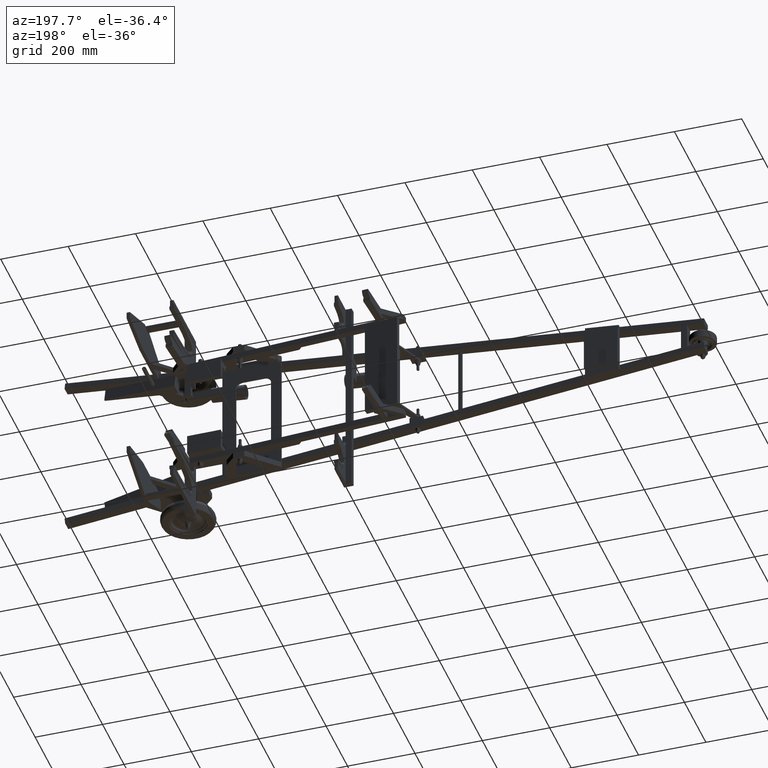
[diagram: clean part render]
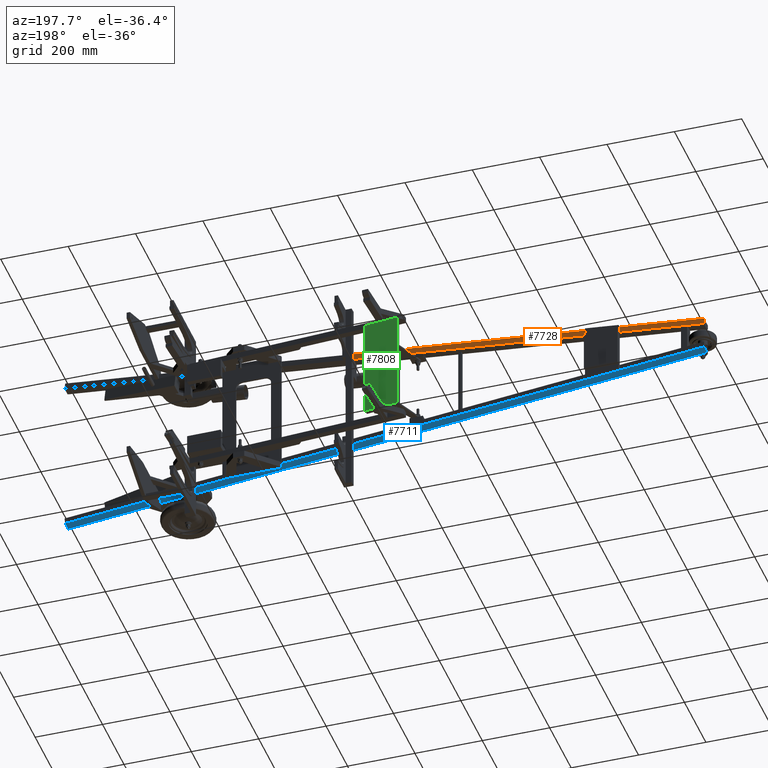
[diagram: same view with three faces highlighted in distinct colors, each labeled with its STEP entity id]
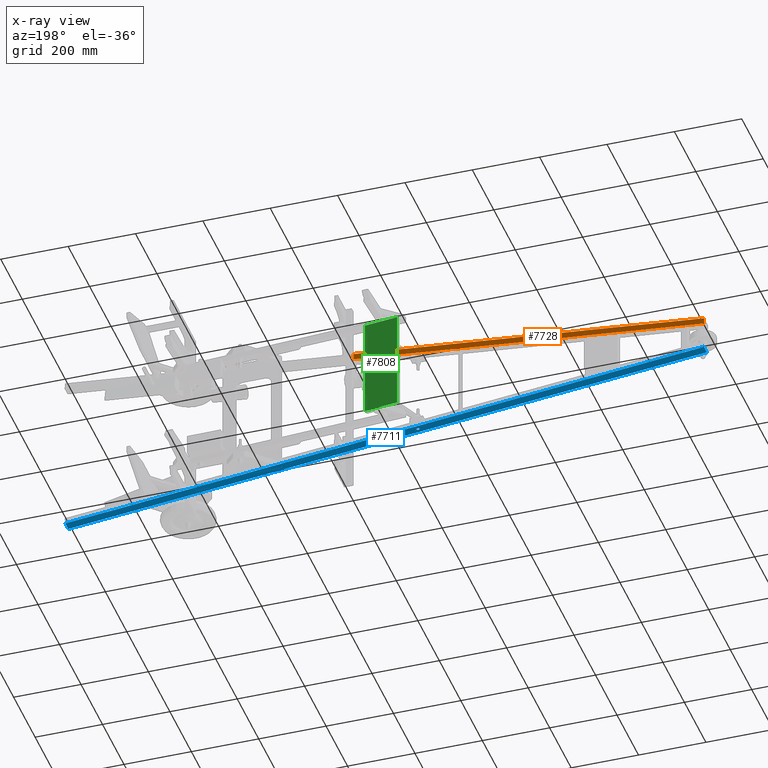
[diagram: x-ray of the same camera — body ghosted, the three highlighted faces saturated]
A machine part, auxiliary view with three faces highlighted in distinct colors.
The next image is the same camera in x-ray (body ghosted, the three faces saturated) — at least one of them is partly hidden behind the body in this view.
Their STEP definitions:

[orange] entity #7728 — the highlighted planar face has unit normal (0, 1, 0).
#979 = EDGE_CURVE ( 'NONE', #7383, #7416, #5084, .T. ) ;
#986 = EDGE_CURVE ( 'NONE', #7383, #7385, #5097, .T. ) ;
#988 = EDGE_CURVE ( 'NONE', #7417, #7385, #5101, .T. ) ;
#990 = EDGE_CURVE ( 'NONE', #7416, #7417, #5105, .T. ) ;
#4211 = CARTESIAN_POINT ( 'NONE',  ( 1550.000000000000000, 28.00000000000000000, 197.0951742379460300 ) ) ;
#4212 = DIRECTION ( 'NONE',  ( -0.9947125423363353300, 0.0000000000000000000, -0.1026983842072710400 ) ) ;
#4225 = CARTESIAN_POINT ( 'NONE',  ( 990.1697919689105400, 28.00000000000000000, -305.0000000000001100 ) ) ;
#4226 = DIRECTION ( 'NONE',  ( 0.0000000000000000000, 0.0000000000000000000, 1.000000000000000000 ) ) ;
#4229 = CARTESIAN_POINT ( 'NONE',  ( -50.00000000000004300, 28.00000000000000000, 50.00000000000000000 ) ) ;
#4230 = DIRECTION ( 'NONE',  ( 0.9947125423363353300, 0.0000000000000000000, 0.1026983842072708800 ) ) ;
#4233 = CARTESIAN_POINT ( 'NONE',  ( -50.00000000000004300, 28.00000000000000000, 31.90431985735037300 ) ) ;
#4234 = DIRECTION ( 'NONE',  ( 0.0000000000000000000, 0.0000000000000000000, 1.000000000000000000 ) ) ;
#5084 = LINE ( 'NONE', #4211, #5085 ) ;
#5085 = VECTOR ( 'NONE', #4212, 1000.000000000000100 ) ;
#5097 = LINE ( 'NONE', #4225, #5098 ) ;
#5098 = VECTOR ( 'NONE', #4226, 1000.000000000000000 ) ;
#5101 = LINE ( 'NONE', #4229, #5102 ) ;
#5102 = VECTOR ( 'NONE', #4230, 1000.000000000000000 ) ;
#5105 = LINE ( 'NONE', #4233, #5106 ) ;
#5106 = VECTOR ( 'NONE', #4234, 1000.000000000000000 ) ;
#7383 = VERTEX_POINT ( 'NONE', #24442 ) ;
#7385 = VERTEX_POINT ( 'NONE', #24444 ) ;
#7416 = VERTEX_POINT ( 'NONE', #24475 ) ;
#7417 = VERTEX_POINT ( 'NONE', #24476 ) ;
#7728 = ADVANCED_FACE ( 'NONE', ( #25381 ), #26239, .T. ) ;
#8759 = EDGE_LOOP ( 'NONE', ( #9349, #9350, #9351, #9352 ) ) ;
#9349 = ORIENTED_EDGE ( 'NONE', *, *, #986, .F. ) ;
#9350 = ORIENTED_EDGE ( 'NONE', *, *, #979, .T. ) ;
#9351 = ORIENTED_EDGE ( 'NONE', *, *, #990, .T. ) ;
#9352 = ORIENTED_EDGE ( 'NONE', *, *, #988, .T. ) ;
#24442 = CARTESIAN_POINT ( 'NONE',  ( 990.1697919689105400, 28.00000000000000000, 139.2959052549946400 ) ) ;
#24444 = CARTESIAN_POINT ( 'NONE',  ( 990.1697919689105400, 28.00000000000000000, 157.3915853976440400 ) ) ;
#24475 = CARTESIAN_POINT ( 'NONE',  ( -50.00000000000004300, 28.00000000000000000, 31.90431985735037300 ) ) ;
#24476 = CARTESIAN_POINT ( 'NONE',  ( -50.00000000000004300, 28.00000000000000000, 50.00000000000000000 ) ) ;
#25381 = FACE_OUTER_BOUND ( 'NONE', #8759, .T. ) ;
#25913 = AXIS2_PLACEMENT_3D ( 'NONE', #26234, #26244, #26245 ) ;
#26234 = CARTESIAN_POINT ( 'NONE',  ( 1550.000000000000000, 28.00000000000000000, 197.0951742379460300 ) ) ;
#26239 = PLANE ( 'NONE',  #25913 ) ;
#26244 = DIRECTION ( 'NONE',  ( 0.0000000000000000000, 1.000000000000000000, 0.0000000000000000000 ) ) ;
#26245 = DIRECTION ( 'NONE',  ( 0.0000000000000000000, -0.0000000000000000000, 1.000000000000000000 ) ) ;

[blue] entity #7711 — the highlighted planar face has unit normal (0.1027, 0, 0.9947).
#915 = EDGE_CURVE ( 'NONE', #7366, #7367, #1766, .T. ) ;
#941 = EDGE_CURVE ( 'NONE', #7390, #7388, #5012, .T. ) ;
#942 = EDGE_CURVE ( 'NONE', #7392, #7399, #5014, .T. ) ;
#943 = EDGE_CURVE ( 'NONE', #7391, #7392, #5007, .T. ) ;
#946 = EDGE_CURVE ( 'NONE', #7395, #7390, #5022, .T. ) ;
#949 = EDGE_CURVE ( 'NONE', #7397, #7395, #5011, .T. ) ;
#951 = EDGE_CURVE ( 'NONE', #7391, #7388, #5017, .T. ) ;
#952 = EDGE_CURVE ( 'NONE', #7367, #7366, #1762, .T. ) ;
#953 = EDGE_CURVE ( 'NONE', #7398, #7399, #5029, .T. ) ;
#954 = EDGE_CURVE ( 'NONE', #7398, #7397, #5036, .T. ) ;
#1762 =( BOUNDED_CURVE ( )  B_SPLINE_CURVE ( 3, ( #4151, #4153, #4154, #4155 ),
 .UNSPECIFIED., .F., .F. ) 
 B_SPLINE_CURVE_WITH_KNOTS ( ( 4, 4 ),
 ( 3.141592653589793100, 6.283185307179586200 ),
 .UNSPECIFIED. ) 
 CURVE ( )  GEOMETRIC_REPRESENTATION_ITEM ( )  RATIONAL_B_SPLINE_CURVE ( ( 1.000000000000000000, 0.3333333333333333700, 0.3333333333333333700, 1.000000000000000000 ) ) 
 REPRESENTATION_ITEM ( '' )  );
#1766 =( BOUNDED_CURVE ( )  B_SPLINE_CURVE ( 3, ( #4069, #4073, #4074, #4075 ),
 .UNSPECIFIED., .F., .F. ) 
 B_SPLINE_CURVE_WITH_KNOTS ( ( 4, 4 ),
 ( 0.0000000000000000000, 3.141592653589793100 ),
 .UNSPECIFIED. ) 
 CURVE ( )  GEOMETRIC_REPRESENTATION_ITEM ( )  RATIONAL_B_SPLINE_CURVE ( ( 1.000000000000000000, 0.3333333333333333700, 0.3333333333333333700, 1.000000000000000000 ) ) 
 REPRESENTATION_ITEM ( '' )  );
#4069 = CARTESIAN_POINT ( 'NONE',  ( 799.4539503963831100, 14.00000000000000000, -137.7012648893440600 ) ) ;
#4073 = CARTESIAN_POINT ( 'NONE',  ( 799.4539503963831100, 6.000000000000017800, -137.7012648893440600 ) ) ;
#4074 = CARTESIAN_POINT ( 'NONE',  ( 807.4539503963832200, 6.000000000000017800, -138.5272191612470200 ) ) ;
#4075 = CARTESIAN_POINT ( 'NONE',  ( 807.4539503963831100, 14.00000000000000000, -138.5272191612470200 ) ) ;
#4129 = CARTESIAN_POINT ( 'NONE',  ( -50.00000000000004300, 28.00000000000000000, -50.00000000000000000 ) ) ;
#4131 = CARTESIAN_POINT ( 'NONE',  ( -50.00000000000004300, 28.00000000000000000, -50.00000000000000000 ) ) ;
#4132 = DIRECTION ( 'NONE',  ( -0.9947125423363353300, -0.0000000000000000000, 0.1026983842072708800 ) ) ;
#4133 = CARTESIAN_POINT ( 'NONE',  ( -50.00000000000004300, 28.00000000000000000, -50.00000000000000000 ) ) ;
#4134 = DIRECTION ( 'NONE',  ( -0.0000000000000000000, -1.000000000000000000, -0.0000000000000000000 ) ) ;
#4136 = DIRECTION ( 'NONE',  ( -0.9947125423363353300, -0.0000000000000000000, 0.1026983842072708800 ) ) ;
#4141 = CARTESIAN_POINT ( 'NONE',  ( -50.00000000000004300, 28.00000000000000000, -50.00000000000000000 ) ) ;
#4142 = DIRECTION ( 'NONE',  ( -0.9947125423363353300, -0.0000000000000000000, 0.1026983842072708800 ) ) ;
#4143 = CARTESIAN_POINT ( 'NONE',  ( -50.00000000000004300, 28.00000000000000000, -50.00000000000000000 ) ) ;
#4147 = CARTESIAN_POINT ( 'NONE',  ( -50.00000000000004300, 28.00000000000000000, -50.00000000000000000 ) ) ;
#4148 = DIRECTION ( 'NONE',  ( -0.9947125423363353300, -0.0000000000000000000, 0.1026983842072708800 ) ) ;
#4151 = CARTESIAN_POINT ( 'NONE',  ( 807.4539503963831100, 14.00000000000000000, -138.5272191612470200 ) ) ;
#4152 = DIRECTION ( 'NONE',  ( 0.9947125423363353300, 0.0000000000000000000, -0.1026983842072708800 ) ) ;
#4153 = CARTESIAN_POINT ( 'NONE',  ( 807.4539503963832200, 21.99999999999998600, -138.5272191612470200 ) ) ;
#4154 = CARTESIAN_POINT ( 'NONE',  ( 799.4539503963831100, 21.99999999999998600, -137.7012648893440600 ) ) ;
#4155 = CARTESIAN_POINT ( 'NONE',  ( 799.4539503963831100, 14.00000000000000000, -137.7012648893440600 ) ) ;
#4157 = CARTESIAN_POINT ( 'NONE',  ( -50.00000000000004300, 0.0000000000000000000, -50.00000000000000000 ) ) ;
#4158 = DIRECTION ( 'NONE',  ( -0.9947125423363353300, -0.0000000000000000000, 0.1026983842072708800 ) ) ;
#4159 = CARTESIAN_POINT ( 'NONE',  ( 1846.565191785169400, -304.1883561386446800, -245.8095152621833100 ) ) ;
#4160 = DIRECTION ( 'NONE',  ( 0.0000000000000000000, 1.000000000000000000, 0.0000000000000000000 ) ) ;
#5007 = LINE ( 'NONE', #4129, #5016 ) ;
#5011 = LINE ( 'NONE', #4143, #5028 ) ;
#5012 = LINE ( 'NONE', #4131, #5013 ) ;
#5013 = VECTOR ( 'NONE', #4132, 1000.000000000000000 ) ;
#5014 = LINE ( 'NONE', #4133, #5015 ) ;
#5015 = VECTOR ( 'NONE', #4134, 1000.000000000000000 ) ;
#5016 = VECTOR ( 'NONE', #4136, 1000.000000000000000 ) ;
#5017 = LINE ( 'NONE', #4147, #5032 ) ;
#5022 = LINE ( 'NONE', #4141, #5023 ) ;
#5023 = VECTOR ( 'NONE', #4142, 1000.000000000000000 ) ;
#5028 = VECTOR ( 'NONE', #4148, 1000.000000000000000 ) ;
#5029 = LINE ( 'NONE', #4157, #5035 ) ;
#5032 = VECTOR ( 'NONE', #4152, 1000.000000000000000 ) ;
#5035 = VECTOR ( 'NONE', #4158, 1000.000000000000000 ) ;
#5036 = LINE ( 'NONE', #4159, #5037 ) ;
#5037 = VECTOR ( 'NONE', #4160, 1000.000000000000000 ) ;
#7366 = VERTEX_POINT ( 'NONE', #24425 ) ;
#7367 = VERTEX_POINT ( 'NONE', #24426 ) ;
#7388 = VERTEX_POINT ( 'NONE', #24447 ) ;
#7390 = VERTEX_POINT ( 'NONE', #24449 ) ;
#7391 = VERTEX_POINT ( 'NONE', #24450 ) ;
#7392 = VERTEX_POINT ( 'NONE', #24451 ) ;
#7395 = VERTEX_POINT ( 'NONE', #24454 ) ;
#7397 = VERTEX_POINT ( 'NONE', #24456 ) ;
#7398 = VERTEX_POINT ( 'NONE', #24457 ) ;
#7399 = VERTEX_POINT ( 'NONE', #24458 ) ;
#7711 = ADVANCED_FACE ( 'NONE', ( #25362, #25366 ), #26170, .F. ) ;
#8740 = EDGE_LOOP ( 'NONE', ( #9256, #9257 ) ) ;
#8744 = EDGE_LOOP ( 'NONE', ( #9258, #9259, #9260, #9261, #9262, #9263, #9264, #9265 ) ) ;
#9256 = ORIENTED_EDGE ( 'NONE', *, *, #952, .T. ) ;
#9257 = ORIENTED_EDGE ( 'NONE', *, *, #915, .T. ) ;
#9258 = ORIENTED_EDGE ( 'NONE', *, *, #953, .T. ) ;
#9259 = ORIENTED_EDGE ( 'NONE', *, *, #942, .F. ) ;
#9260 = ORIENTED_EDGE ( 'NONE', *, *, #943, .F. ) ;
#9261 = ORIENTED_EDGE ( 'NONE', *, *, #951, .T. ) ;
#9262 = ORIENTED_EDGE ( 'NONE', *, *, #941, .F. ) ;
#9263 = ORIENTED_EDGE ( 'NONE', *, *, #946, .F. ) ;
#9264 = ORIENTED_EDGE ( 'NONE', *, *, #949, .F. ) ;
#9265 = ORIENTED_EDGE ( 'NONE', *, *, #954, .F. ) ;
#24425 = CARTESIAN_POINT ( 'NONE',  ( 799.4539503963831100, 14.00000000000000000, -137.7012648893440600 ) ) ;
#24426 = CARTESIAN_POINT ( 'NONE',  ( 807.4539503963831100, 14.00000000000000000, -138.5272191612470200 ) ) ;
#24447 = CARTESIAN_POINT ( 'NONE',  ( 1008.169791968910300, 28.00000000000000000, -159.2499825094257600 ) ) ;
#24449 = CARTESIAN_POINT ( 'NONE',  ( 1468.169791968910400, 28.00000000000000000, -206.7423531438469700 ) ) ;
#24450 = CARTESIAN_POINT ( 'NONE',  ( 990.1697919689103200, 28.00000000000000000, -157.3915853976440600 ) ) ;
#24451 = CARTESIAN_POINT ( 'NONE',  ( -50.00000000000004300, 28.00000000000000000, -50.00000000000000000 ) ) ;
#24454 = CARTESIAN_POINT ( 'NONE',  ( 1486.169791968910400, 28.00000000000000000, -208.6007502556287000 ) ) ;
#24456 = CARTESIAN_POINT ( 'NONE',  ( 1846.565191785169400, 28.00000000000000000, -245.8095152621833100 ) ) ;
#24457 = CARTESIAN_POINT ( 'NONE',  ( 1846.565191785169400, 0.0000000000000000000, -245.8095152621833100 ) ) ;
#24458 = CARTESIAN_POINT ( 'NONE',  ( -50.00000000000004300, 0.0000000000000000000, -50.00000000000000000 ) ) ;
#25362 = FACE_BOUND ( 'NONE', #8740, .T. ) ;
#25366 = FACE_OUTER_BOUND ( 'NONE', #8744, .T. ) ;
#25896 = AXIS2_PLACEMENT_3D ( 'NONE', #26171, #26176, #26177 ) ;
#26170 = PLANE ( 'NONE',  #25896 ) ;
#26171 = CARTESIAN_POINT ( 'NONE',  ( -50.00000000000004300, 28.00000000000000000, -50.00000000000000000 ) ) ;
#26176 = DIRECTION ( 'NONE',  ( 0.1026983842072708800, -0.0000000000000000000, 0.9947125423363353300 ) ) ;
#26177 = DIRECTION ( 'NONE',  ( 0.9947125423363353300, 0.0000000000000000000, -0.1026983842072708800 ) ) ;

[green] entity #7808 — the highlighted planar face has unit normal (-0.1098, -0.9939, -0).
#218 = ORIENTED_EDGE ( 'NONE', *, *, #1618, .T. ) ;
#219 = ORIENTED_EDGE ( 'NONE', *, *, #1626, .T. ) ;
#220 = ORIENTED_EDGE ( 'NONE', *, *, #1627, .T. ) ;
#221 = ORIENTED_EDGE ( 'NONE', *, *, #1625, .T. ) ;
#1618 = EDGE_CURVE ( 'NONE', #7521, #7520, #5589, .T. ) ;
#1625 = EDGE_CURVE ( 'NONE', #7525, #7521, #5592, .T. ) ;
#1626 = EDGE_CURVE ( 'NONE', #7520, #7523, #11031, .T. ) ;
#1627 = EDGE_CURVE ( 'NONE', #7523, #7525, #11033, .T. ) ;
#5589 = LINE ( 'NONE', #6289, #5590 ) ;
#5590 = VECTOR ( 'NONE', #6290, 1000.000000000000000 ) ;
#5592 = LINE ( 'NONE', #6297, #11029 ) ;
#6289 = CARTESIAN_POINT ( 'NONE',  ( 0.0000000000000000000, 10.00000000000000000, 0.0000000000000000000 ) ) ;
#6290 = DIRECTION ( 'NONE',  ( -0.0000000000000000000, -0.0000000000000000000, 1.000000000000000000 ) ) ;
#6297 = CARTESIAN_POINT ( 'NONE',  ( 0.0000000000000000000, 10.00000000000000000, -100.0000000000000000 ) ) ;
#6304 = DIRECTION ( 'NONE',  ( -1.000000000000000000, -0.0000000000000000000, -0.0000000000000000000 ) ) ;
#6305 = CARTESIAN_POINT ( 'NONE',  ( 0.0000000000000000000, 10.00000000000000000, 0.0000000000000000000 ) ) ;
#6306 = DIRECTION ( 'NONE',  ( 1.000000000000000000, 0.0000000000000000000, 0.0000000000000000000 ) ) ;
#6307 = CARTESIAN_POINT ( 'NONE',  ( 300.0000000000000000, 10.00000000000000000, 0.0000000000000000000 ) ) ;
#6308 = DIRECTION ( 'NONE',  ( 0.0000000000000000000, 0.0000000000000000000, -1.000000000000000000 ) ) ;
#7520 = VERTEX_POINT ( 'NONE', #24579 ) ;
#7521 = VERTEX_POINT ( 'NONE', #24580 ) ;
#7523 = VERTEX_POINT ( 'NONE', #24582 ) ;
#7525 = VERTEX_POINT ( 'NONE', #24584 ) ;
#7808 = ADVANCED_FACE ( 'NONE', ( #25481 ), #26549, .F. ) ;
#8851 = EDGE_LOOP ( 'NONE', ( #218, #219, #220, #221 ) ) ;
#11029 = VECTOR ( 'NONE', #6304, 1000.000000000000000 ) ;
#11031 = LINE ( 'NONE', #6305, #11032 ) ;
#11032 = VECTOR ( 'NONE', #6306, 1000.000000000000000 ) ;
#11033 = LINE ( 'NONE', #6307, #11034 ) ;
#11034 = VECTOR ( 'NONE', #6308, 1000.000000000000000 ) ;
#24579 = CARTESIAN_POINT ( 'NONE',  ( 0.0000000000000000000, 10.00000000000000000, 0.0000000000000000000 ) ) ;
#24580 = CARTESIAN_POINT ( 'NONE',  ( 0.0000000000000000000, 10.00000000000000000, -100.0000000000000000 ) ) ;
#24582 = CARTESIAN_POINT ( 'NONE',  ( 300.0000000000000000, 10.00000000000000000, 0.0000000000000000000 ) ) ;
#24584 = CARTESIAN_POINT ( 'NONE',  ( 300.0000000000000000, 10.00000000000000000, -100.0000000000000000 ) ) ;
#25481 = FACE_OUTER_BOUND ( 'NONE', #8851, .T. ) ;
#25993 = AXIS2_PLACEMENT_3D ( 'NONE', #26544, #26554, #26555 ) ;
#26544 = CARTESIAN_POINT ( 'NONE',  ( 0.0000000000000000000, 10.00000000000000000, -100.0000000000000000 ) ) ;
#26549 = PLANE ( 'NONE',  #25993 ) ;
#26554 = DIRECTION ( 'NONE',  ( 0.0000000000000000000, -1.000000000000000000, 0.0000000000000000000 ) ) ;
#26555 = DIRECTION ( 'NONE',  ( 0.0000000000000000000, -0.0000000000000000000, -1.000000000000000000 ) ) ;